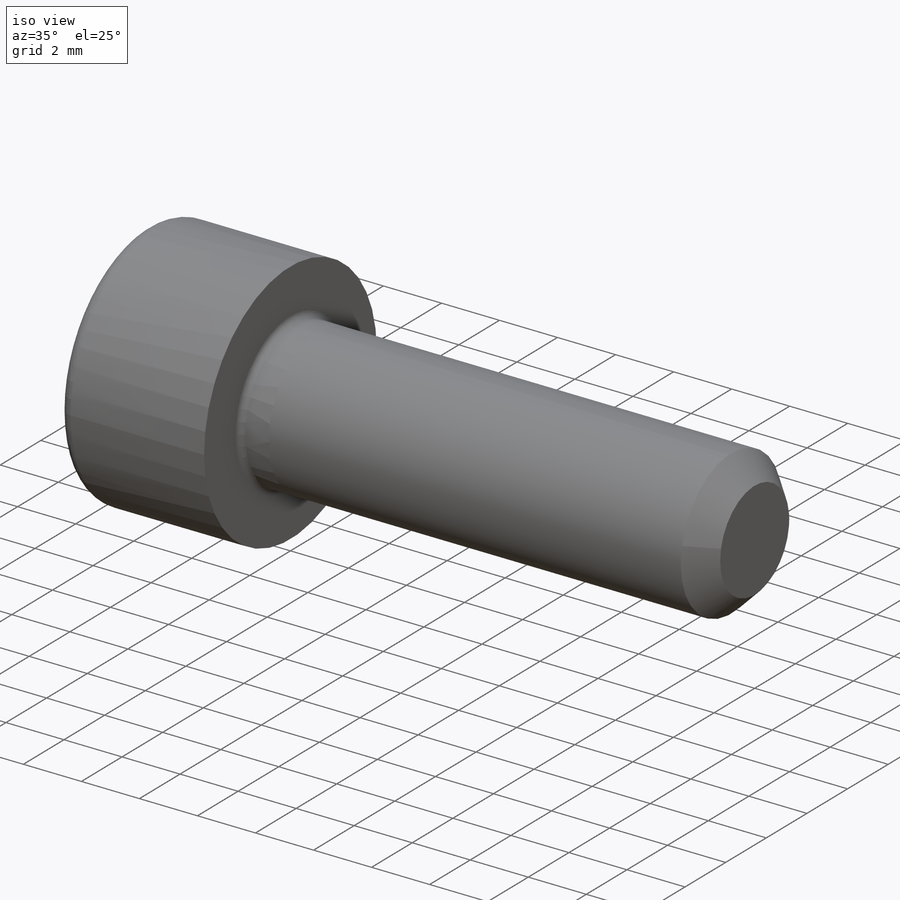
[diagram: iso view]
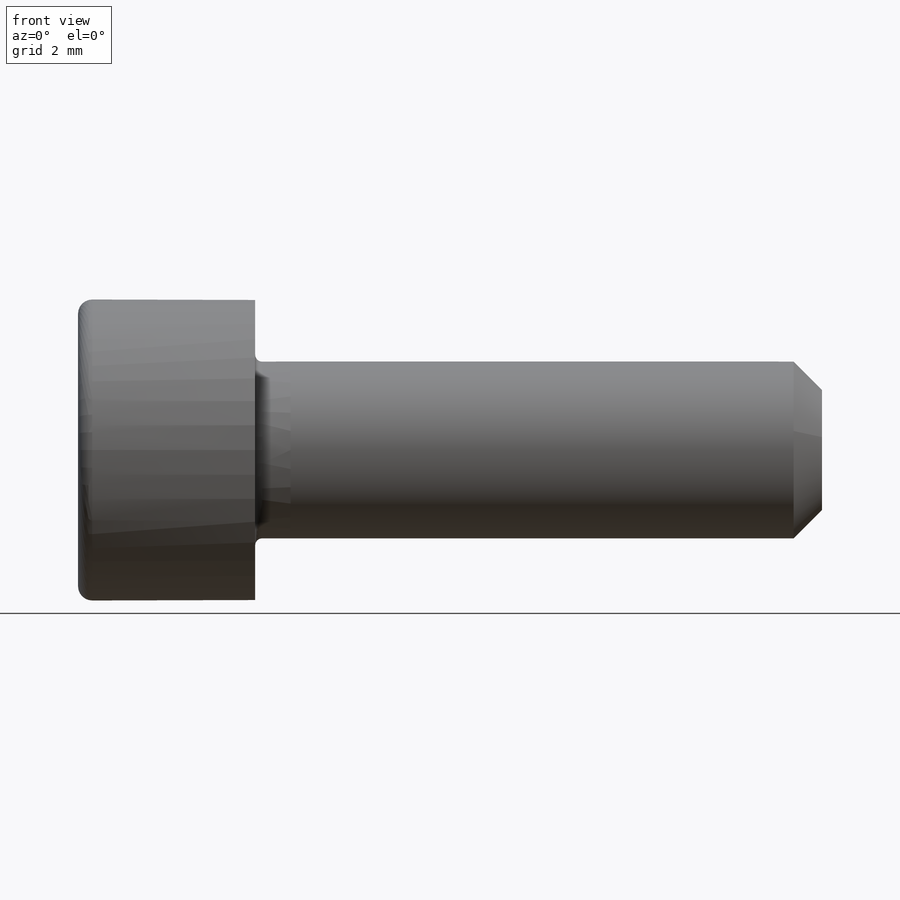
[diagram: front view]
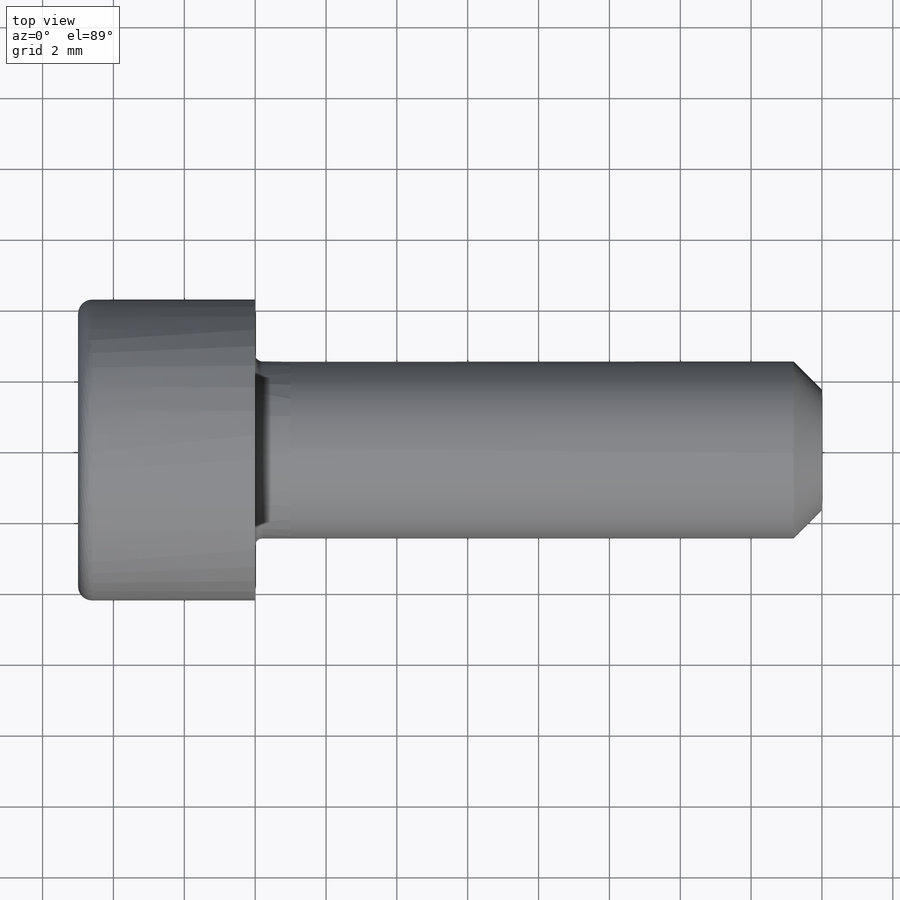
[diagram: top view]
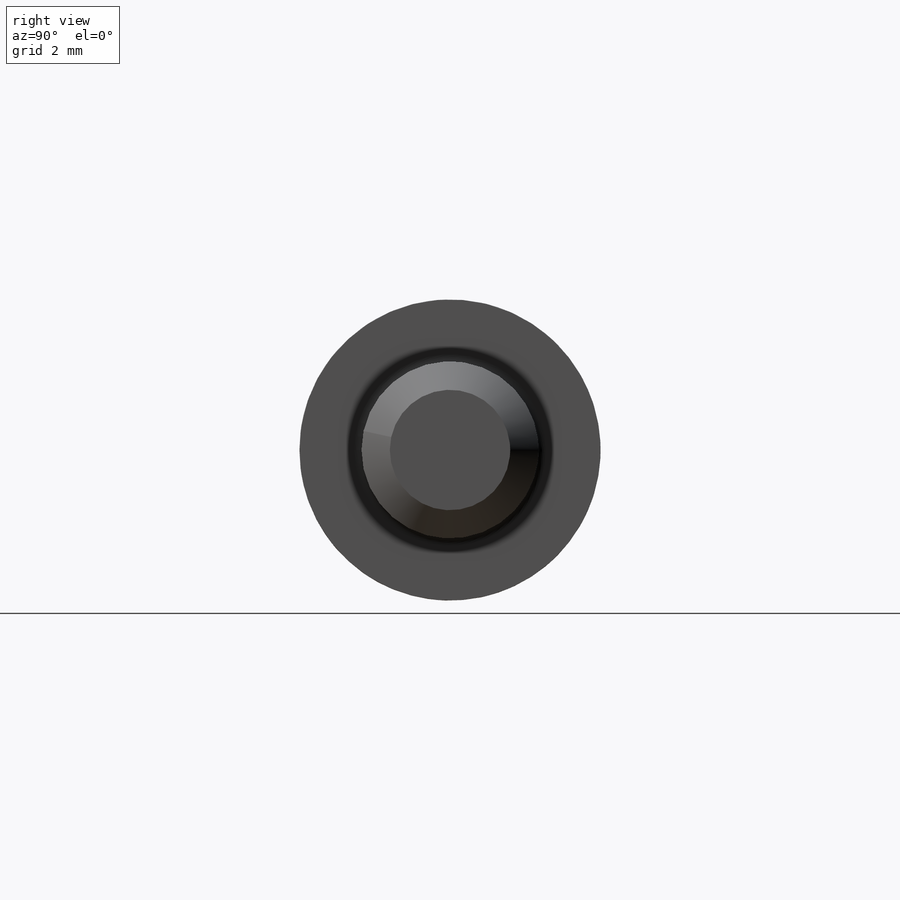
[diagram: right view]
SOLIDWORKS PART (.sldprt)
format: sldprt  version: not decoded by parser v0  size: 162,304 bytes
history: native  units: mm
features: sketch x5, plane x3, extrude x2, cut_extrude x2, chamfer x2, fillet x2, material x1 (+12 scaffold rows collapsed)
feature tree (29):
  scaffold x12  (default folders/planes/origin — collapsed)
  material  "Материал <не указан>"
  plane  "Спереди"
  plane  "Сверху"
  plane  "Справа"
  sketch  "Эскиз1"  dims[D1=5.0mm]
  extrude  "Вытянуть1"  Depth=16mm
  sketch  "Эскиз2"  dims[D1=8.5mm]
  extrude  "Вытянуть2"  Depth=5mm
  sketch  "Эскиз3"  dims[D1=4.0mm]
  cut_extrude  "Вырез-Вытянуть1"  Depth=3.4mm
  chamfer  "Фаска1"  Distance=0.8mm Angle=45deg
  fillet  "Скругление1"  Radius=0.4mm
  fillet  "Скругление2"  Radius=0.2mm
  chamfer  "Фаска2"  Distance=0.4mm Angle=30deg
  sketch  "Эскиз4"  dims[D1=4.0mm]
  cut_extrude  "Вырез-Вытянуть2"  Depth=2.8mm
  sketch  "Эскиз5"  dims[D1=15.0mm]
decode coverage: 13 of 13 modeling features carry decoded parameters
note: suppression state not decoded; provenance and decode notes live in map.json
